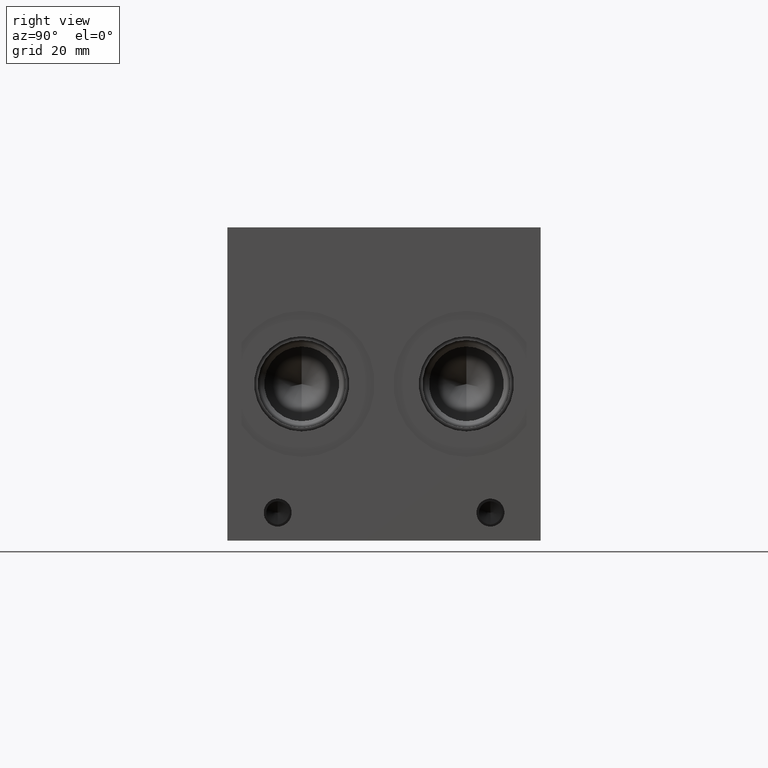
[diagram: clean part render]
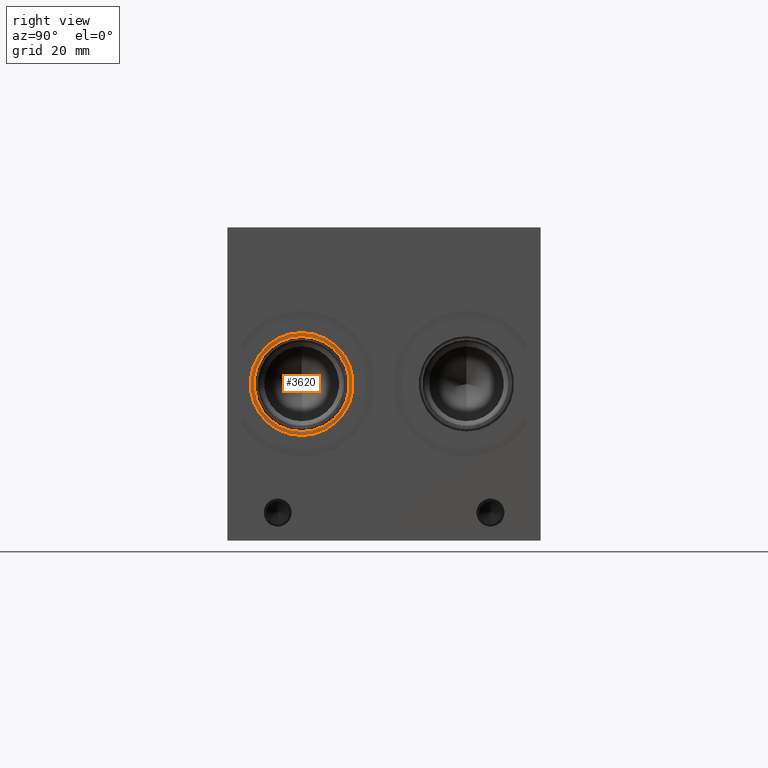
[diagram: same view with one face highlighted and labeled with its STEP entity id]
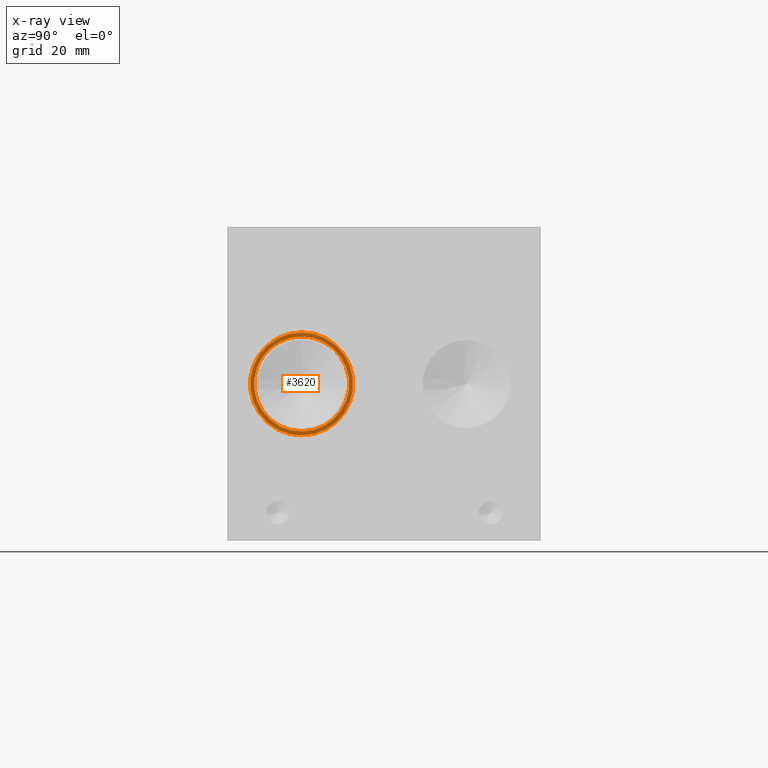
[diagram: x-ray of the same camera — body ghosted, the highlighted face saturated]
A machine part, right view. The second image highlights one B-rep face of the part: STEP entity #3620.
The next image is the same camera in x-ray: the body ghosted, the highlighted face saturated — about 0% of this face is hidden behind the body in this view.
In plain terms, the highlighted planar face has unit normal (-1, 0, 0).
Its self-contained STEP definition (entity closure, byte-faithful):
#3589=CARTESIAN_POINT('',(161.010600000000010,21.081999999999997,29.844999999999999));
#3590=VERTEX_POINT('',#3589);
#3591=CARTESIAN_POINT('',(161.010600000000010,21.081999999999997,44.449999999999996));
#3592=DIRECTION('',(-1.0,0.0,0.0));
#3593=DIRECTION('',(0.0,-1.0,0.0));
#3594=AXIS2_PLACEMENT_3D('',#3591,#3592,#3593);
#3595=CIRCLE('',#3594,14.604999999999997);
#3596=EDGE_CURVE('',#3590,#3590,#3595,.T.);
#3601=CARTESIAN_POINT('',(161.010600000000010,21.081999999999997,44.449999999999996));
#3602=DIRECTION('',(-1.0,0.0,0.0));
#3603=DIRECTION('',(0.0,0.0,1.0));
#3604=AXIS2_PLACEMENT_3D('',#3601,#3602,#3603);
#3605=PLANE('',#3604);
#3606=ORIENTED_EDGE('',*,*,#3596,.F.);
#3607=EDGE_LOOP('',(#3606));
#3608=FACE_OUTER_BOUND('',#3607,.T.);
#3609=CARTESIAN_POINT('',(161.010600000000010,21.081999999999997,30.956249999999997));
#3610=VERTEX_POINT('',#3609);
#3611=CARTESIAN_POINT('',(161.010600000000010,21.081999999999997,44.449999999999996));
#3612=DIRECTION('',(-1.0,0.0,0.0));
#3613=DIRECTION('',(0.0,-1.0,0.0));
#3614=AXIS2_PLACEMENT_3D('',#3611,#3612,#3613);
#3615=CIRCLE('',#3614,13.493749999999999);
#3616=EDGE_CURVE('',#3610,#3610,#3615,.T.);
#3617=ORIENTED_EDGE('',*,*,#3616,.T.);
#3618=EDGE_LOOP('',(#3617));
#3619=FACE_BOUND('',#3618,.T.);
#3620=ADVANCED_FACE('',(#3608,#3619),#3605,.F.);